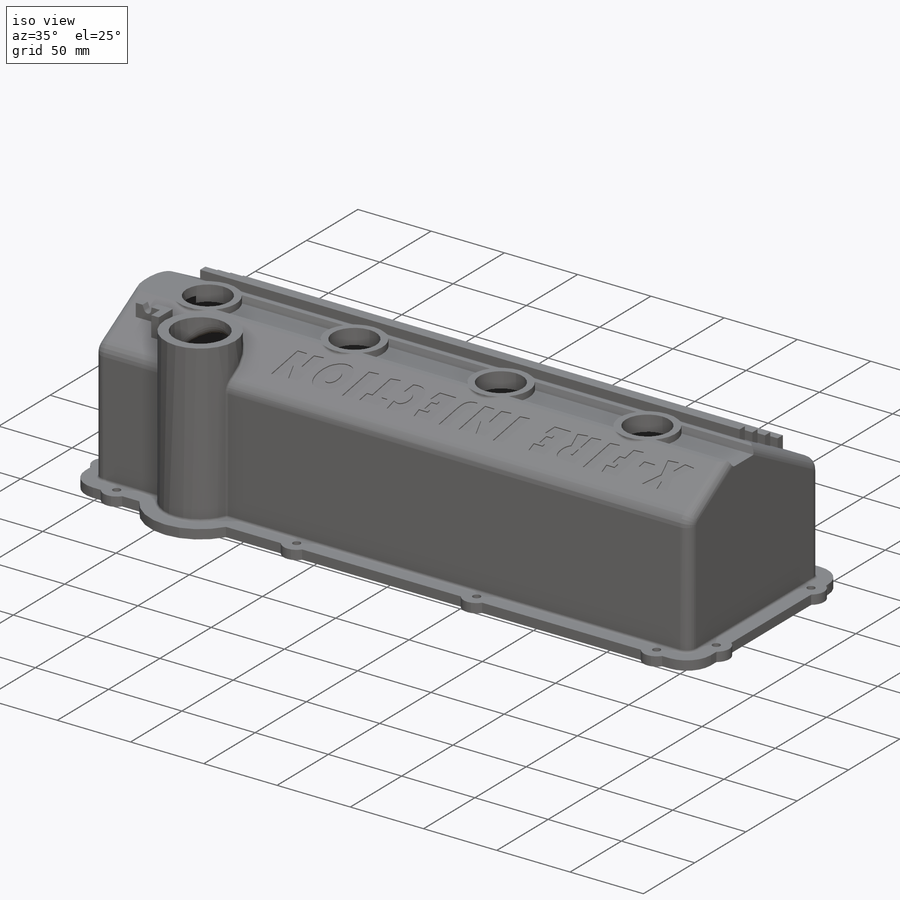
[diagram: iso view]
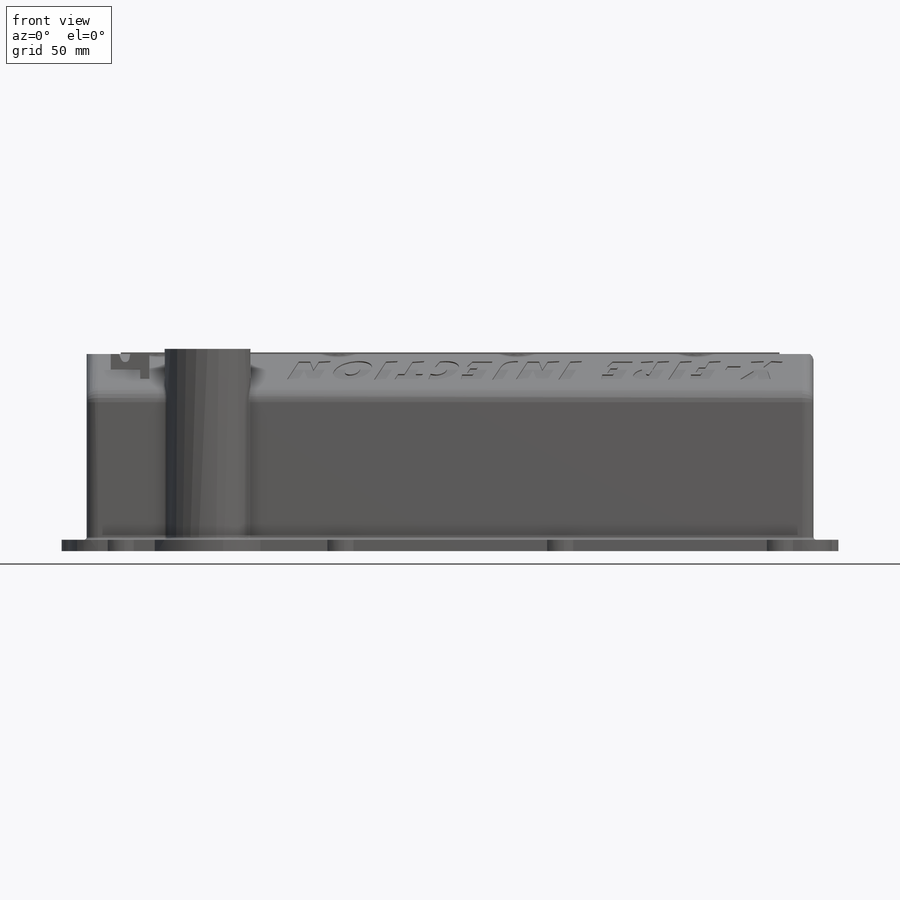
[diagram: front view]
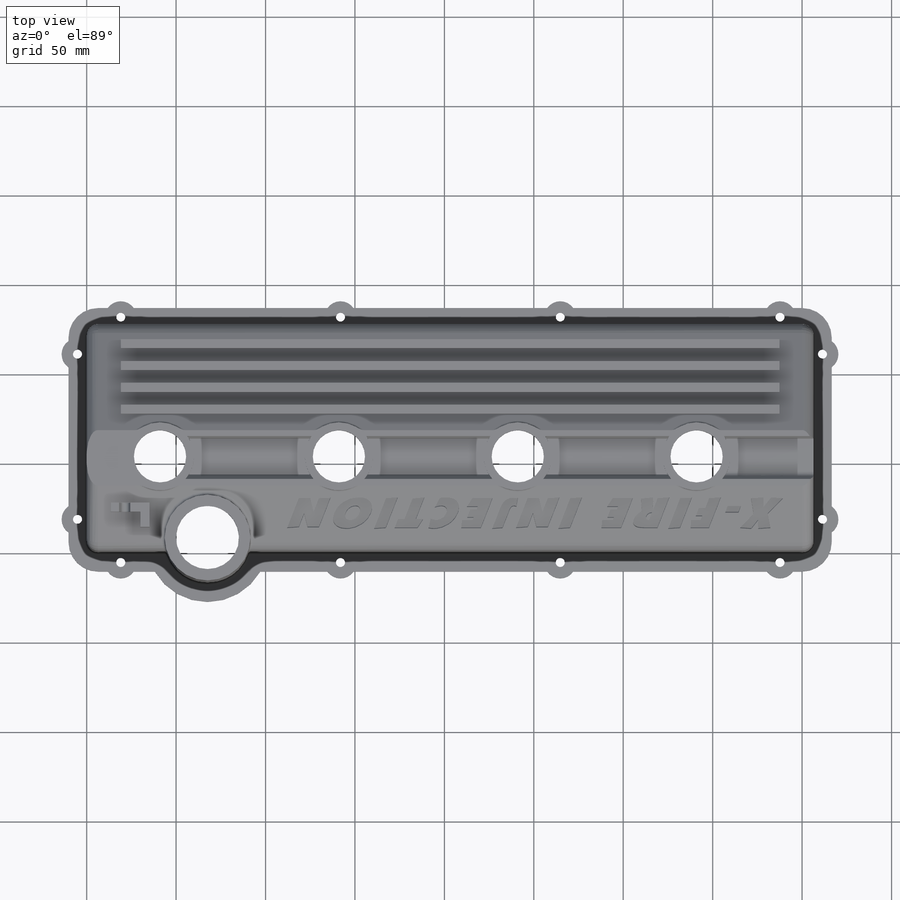
[diagram: top view]
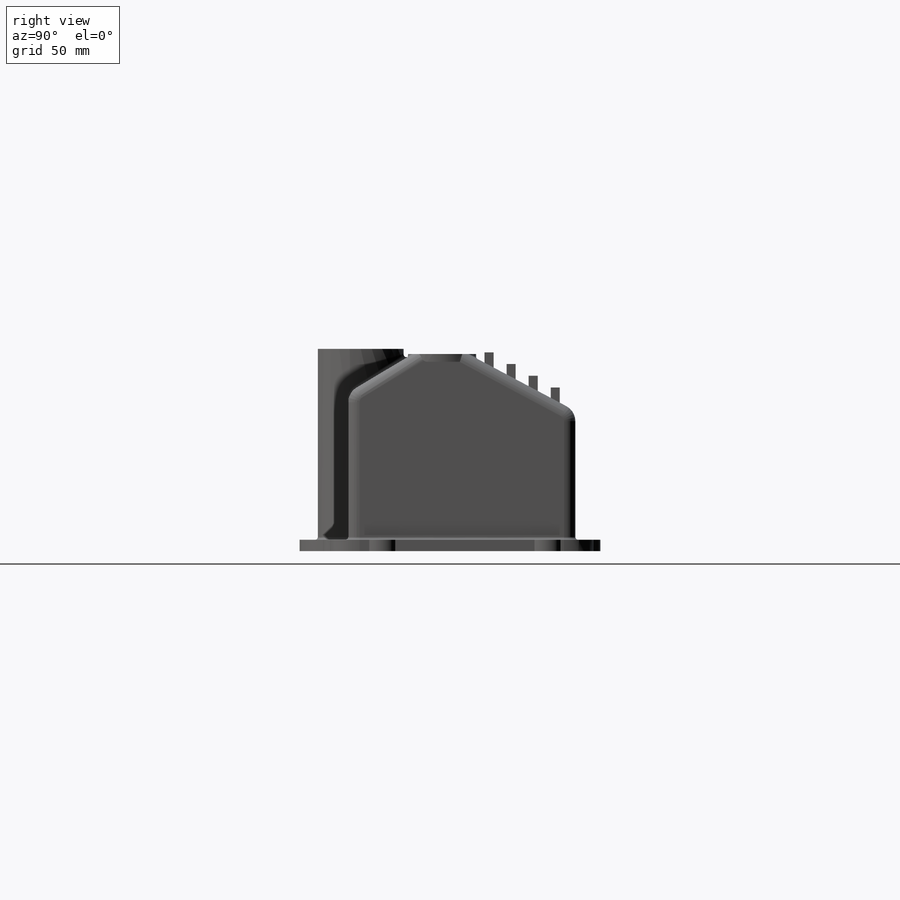
[diagram: right view]
SOLIDWORKS PART (.sldprt)
format: sldprt  version: not decoded by parser v0  size: 1,133,056 bytes
history: native  units: mm
features: sketch x15, extrude x9, fillet x7, cut_extrude x5, material x1, shell x1, plane x1, pattern_linear x1 (+11 scaffold rows collapsed)
feature tree (51):
  scaffold x11  (default folders/planes/origin — collapsed)
  material  "Material <not specified>"
  sketch  "Sketch1"  dims[D1=406.4mm D2=114.3mm]
  extrude  "Base-Extrude"  Depth=127mm
  sketch  "Sketch4"
  cut_extrude  "Cut-Extrude1"  [1 undecoded]
  sketch  "Sketch5"
  extrude  "Boss-Extrude1"  Depth=113.03mm
  sketch  "Sketch6"
  extrude  "Boss-Extrude3"  [1 undecoded]
  fillet  "Fillet2"  Radius=9.525mm
  sketch  "Sketch13"  dims[c1.D2=~4.548978mm c2.D2=~17.777472deg c3.D2=3.175mm c3.D3=3.175mm c3.D1=0.0mm]
  extrude  "Boss-Extrude6"  [1 undecoded]
  fillet  "Fillet3"  Radius=6.35mm
  fillet  "Fillet4"  Radius=1.524mm
  shell  "Shell3"  Thickness=6.35mm
  sketch  "Sketch15"  dims[D1=38.1mm]
  extrude  "Boss-Extrude8"  [1 undecoded]
  fillet  "Fillet21"  Radius=1.524mm
  sketch  "Sketch16"
  cut_extrude  "Cut-Extrude3"  [1 undecoded]
  fillet  "Fillet18"  Radius=3.175mm
  sketch  "Sketch8"  dims[c1.D3=5.08mm c1.D4=5.08mm c1.D2=19.05mm c2.D4=5.08mm c2.D5=90.0deg c2.D6=90.0deg c2.D1=10.16mm c2.D7=6.35mm c2.D8=6.35mm c2.D9=6.35mm c2.D10=6.35mm c2.D11=6.35mm c2.D12=6.35mm c2.D13=6.35mm c2.D14=6.35mm c2.D15=0.0mm]
  extrude  "Boss-Extrude4"  Depth=6.35mm
  fillet  "Fillet10"  Radius=1.524mm
  fillet  "Fillet11"  Radius=5.08mm
  sketch  "Sketch9"  dims[c1.D1=6.35mm c2.D1=3.175mm c2.D5=3.175mm c2.D6=0.254mm c2.D7=5.0mm]
  plane  "Plane1"  Offset=19.05mm
  sketch  "Sketch11"  dims[D1=5.08mm D2=76.2mm D3=10.16mm D4=111.125mm]
  extrude  "Boss-Extrude5"  Depth=19.05mm
  pattern_linear  "LPattern1"  Count1=4 Count2=1 Spacing1=13.97mm Spacing2=50mm
  sketch  "Sketch12"
  cut_extrude  "Cut-Extrude2"  Depth=0.762mm
  sketch  "Sketch14"
  extrude  "Boss-Extrude7"  Depth=18.415mm
  sketch  "Sketch17"  dims[D1=5.08mm]
  extrude  "Boss-Extrude9"  [1 undecoded]
  sketch  "Sketch18"
  cut_extrude  "Cut-Extrude4"  [1 undecoded]
  sketch  "Sketch19"
  cut_extrude  "Cut-Extrude5"  [1 undecoded]
decode coverage: 22 of 38 modeling features carry decoded parameters
note: ~ marks probable driven/reference dimensions
note: 8 parameter values undecoded
summary: no parameter record found for 8 features
note: suppression state not decoded; provenance and decode notes live in map.json
